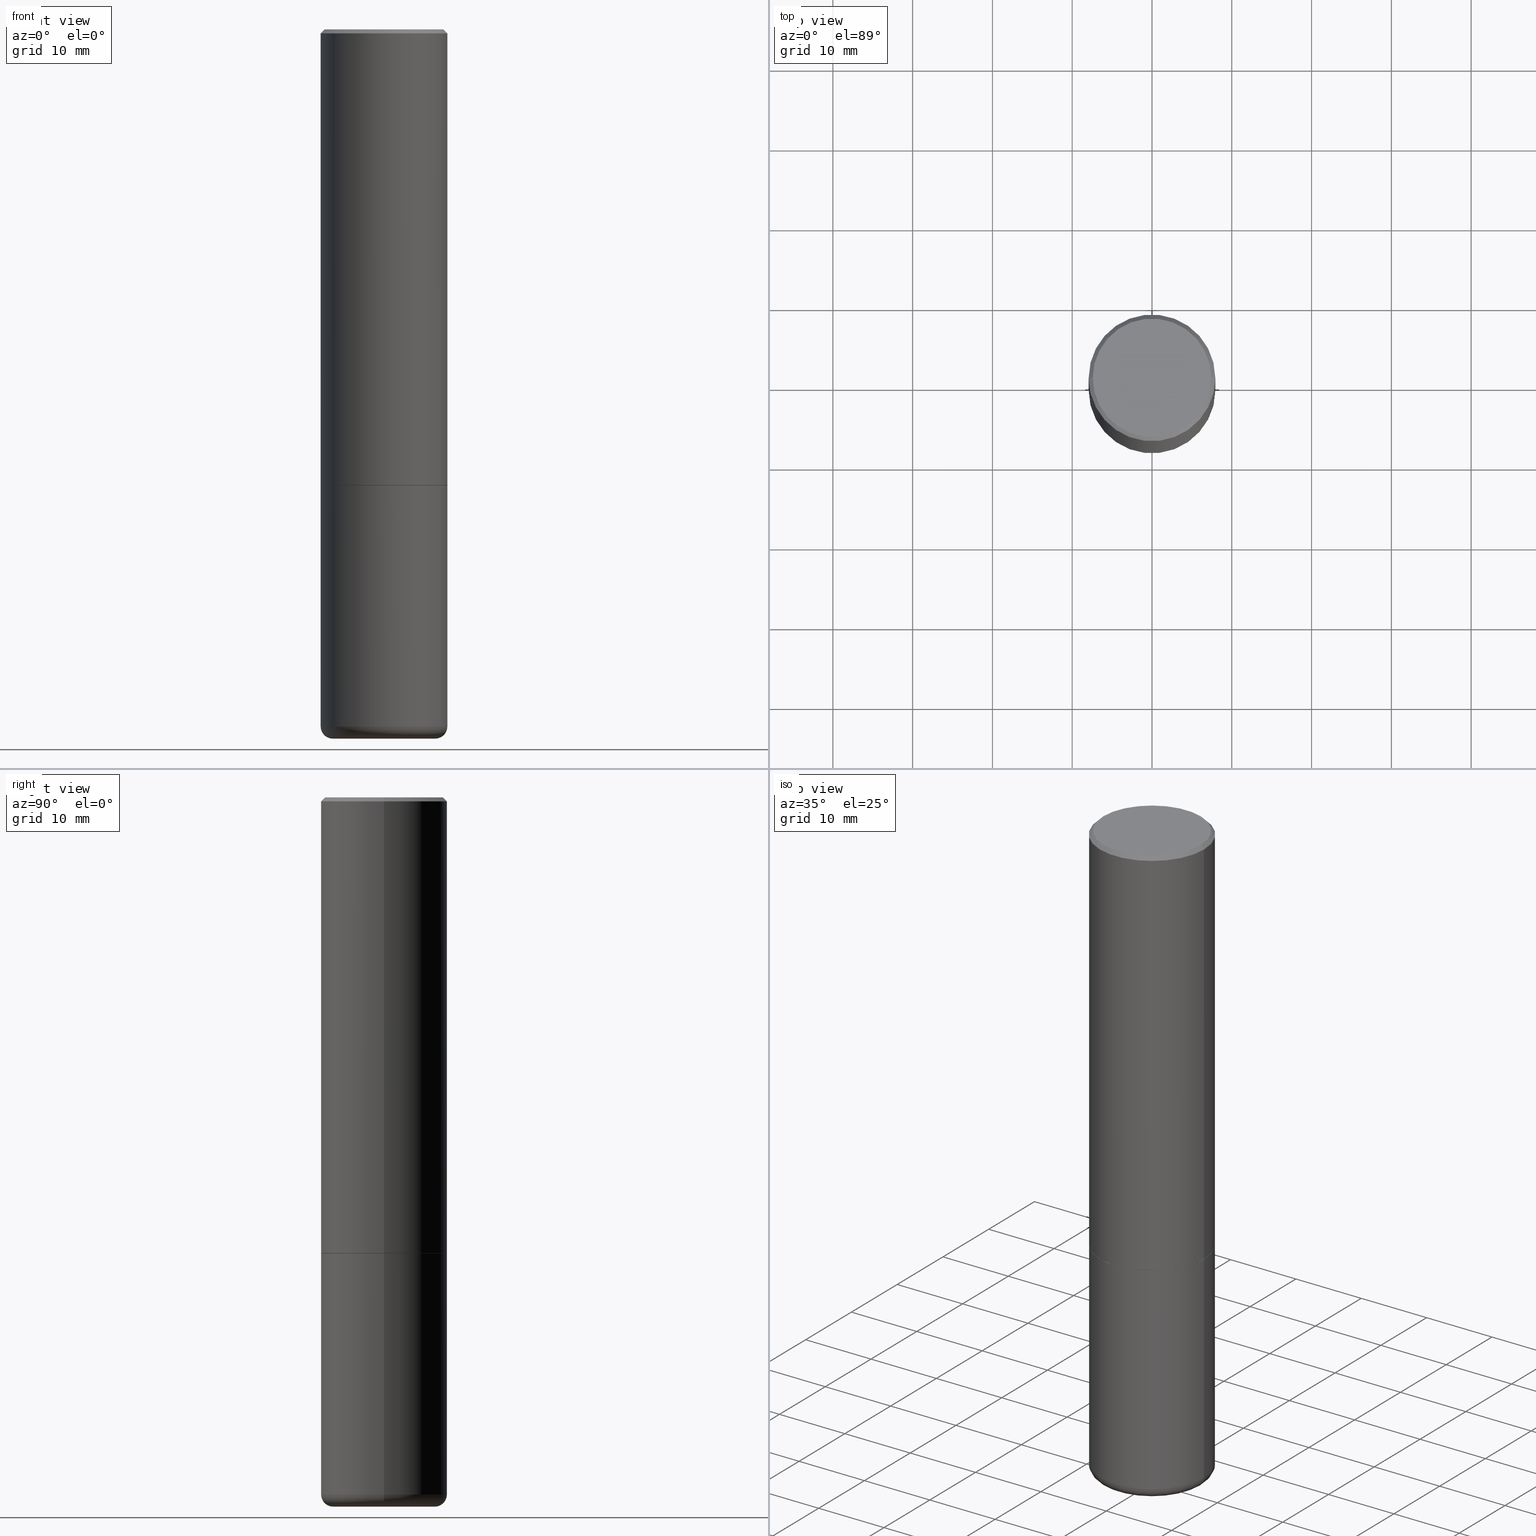
[diagram: canonical four-view strip — front | top / right | iso, engineering-drawing reading convention]
A machine part, canonical four-view strip (front | top / right | iso — engineering-drawing reading convention). The complete STEP part file that produces these views, byte-faithful:
ISO-10303-21;
HEADER;
FILE_DESCRIPTION (( 'STEP AP203' ),
    '1' );
FILE_NAME ('37077.STEP',
    '2024-03-01T19:43:03',
    ( '' ),
    ( '' ),
    'SwSTEP 2.0',
    'SolidWorks 2023',
    '' );
FILE_SCHEMA (( 'CONFIG_CONTROL_DESIGN' ));
ENDSEC;

DATA;
#1 = ORIENTED_EDGE ( 'NONE', *, *, #171, .T. ) ;
#2 = ORIENTED_EDGE ( 'NONE', *, *, #397, .F. ) ;
#3 = CARTESIAN_POINT ( 'NONE',  ( 0.000000000000000000, 0.000000000000000000, 0.000000000000000000 ) ) ;
#4 = ADVANCED_FACE ( 'NONE', ( #13 ), #187, .F. ) ;
#5 = FACE_OUTER_BOUND ( 'NONE', #152, .T. ) ;
#6 = CIRCLE ( 'NONE', #236, 0.3114999999999999991 ) ;
#7 = VERTEX_POINT ( 'NONE', #33 ) ;
#8 = EDGE_CURVE ( 'NONE', #368, #7, #336, .T. ) ;
#9 = AXIS2_PLACEMENT_3D ( 'NONE', #371, #205, #110 ) ;
#10 = CARTESIAN_POINT ( 'NONE',  ( -0.2525000000000000022, -1.010815701726343156E-14, -3.500000000000000000 ) ) ;
#11 = ORIENTED_EDGE ( 'NONE', *, *, #179, .F. ) ;
#12 = CARTESIAN_POINT ( 'NONE',  ( 5.502304813916556222E-29, -7.855833012397076871E-15, -2.249999999999999556 ) ) ;
#13 = FACE_OUTER_BOUND ( 'NONE', #161, .T. ) ;
#14 = CARTESIAN_POINT ( 'NONE',  ( 4.890937612370289799E-31, -6.982962677686315028E-17, -0.02000000000000006981 ) ) ;
#15 = DIRECTION ( 'NONE',  ( -2.438088387897960049E-29, 3.491481338843145188E-15, 1.000000000000000000 ) ) ;
#16 = AXIS2_PLACEMENT_3D ( 'NONE', #83, #50, #77 ) ;
#17 = ORGANIZATION ( 'UNSPECIFIED', 'UNSPECIFIED', '' ) ;
#18 = CARTESIAN_POINT ( 'NONE',  ( 4.890937612370289799E-31, -6.982962677686315028E-17, -0.02000000000000006981 ) ) ;
#19 = CARTESIAN_POINT ( 'NONE',  ( 8.559140821647976968E-29, -1.222018468595100934E-14, -3.500000000000000000 ) ) ;
#20 = VERTEX_POINT ( 'NONE', #154 ) ;
#21 = VECTOR ( 'NONE', #200, 39.37007874015748854 ) ;
#22 = ORIENTED_EDGE ( 'NONE', *, *, #186, .F. ) ;
#23 = PRODUCT_RELATED_PRODUCT_CATEGORY ( 'detail', '', ( #312 ) ) ;
#24 = EDGE_CURVE ( 'NONE', #394, #225, #309, .T. ) ;
#25 = PRODUCT_DEFINITION_SHAPE ( 'NONE', 'NONE',  #170 ) ;
#26 = ORIENTED_EDGE ( 'NONE', *, *, #249, .F. ) ;
#27 = APPLICATION_PROTOCOL_DEFINITION ( 'international standard', 'config_control_design', 1994, #301 ) ;
#28 = VERTEX_POINT ( 'NONE', #207 ) ;
#29 = DIRECTION ( 'NONE',  ( 1.000000000000000000, -6.982962677686269077E-15, 0.000000000000000000 ) ) ;
#30 = CIRCLE ( 'NONE', #108, 0.3125000000000002220 ) ;
#31 = PERSON_AND_ORGANIZATION ( #82, #17 ) ;
#32 = CYLINDRICAL_SURFACE ( 'NONE', #191, 0.3125000000000000000 ) ;
#33 = CARTESIAN_POINT ( 'NONE',  ( 0.3114999999999999991, -1.003102588649634920E-14, -2.249999999999999556 ) ) ;
#34 = CIRCLE ( 'NONE', #126, 0.2525000000000000022 ) ;
#35 = CIRCLE ( 'NONE', #224, 0.3125000000000000000 ) ;
#36 = CALENDAR_DATE ( 2024, 1, 3 ) ;
#37 = DIRECTION ( 'NONE',  ( 1.000000000000000000, -6.982962677686266711E-15, 0.000000000000000000 ) ) ;
#38 = DIRECTION ( 'NONE',  ( 1.000000000000000000, -6.982962677686265922E-15, 0.000000000000000000 ) ) ;
#39 = CYLINDRICAL_SURFACE ( 'NONE', #217, 0.3125000000000000000 ) ;
#40 = AXIS2_PLACEMENT_3D ( 'NONE', #340, #265, #38 ) ;
#41 = PRODUCT_DEFINITION_FORMATION_WITH_SPECIFIED_SOURCE ( 'ANY', '', #312, .NOT_KNOWN. ) ;
#42 = DIRECTION ( 'NONE',  ( -2.445468806185136597E-29, 3.491481338843145583E-15, 1.000000000000000000 ) ) ;
#43 = DIRECTION ( 'NONE',  ( -2.445468806185136597E-29, 3.491481338843145583E-15, 1.000000000000000000 ) ) ;
#44 = DIRECTION ( 'NONE',  ( -2.445468806185136597E-29, 3.491481338843145583E-15, 1.000000000000000000 ) ) ;
#45 = FACE_OUTER_BOUND ( 'NONE', #291, .T. ) ;
#46 = ORIENTED_EDGE ( 'NONE', *, *, #261, .F. ) ;
#47 =( CONVERSION_BASED_UNIT ( 'INCH', #239 ) LENGTH_UNIT ( ) NAMED_UNIT ( #311 ) );
#48 = VECTOR ( 'NONE', #282, 39.37007874015748143 ) ;
#49 = CC_DESIGN_DATE_AND_TIME_ASSIGNMENT ( #229, #366, ( #241 ) ) ;
#50 = DIRECTION ( 'NONE',  ( -2.445468806185136597E-29, 3.491481338843145583E-15, 1.000000000000000000 ) ) ;
#51 = APPLICATION_PROTOCOL_DEFINITION ( 'international standard', 'config_control_design', 1994, #290 ) ;
#52 = ORIENTED_EDGE ( 'NONE', *, *, #8, .F. ) ;
#53 = ORIENTED_EDGE ( 'NONE', *, *, #106, .F. ) ;
#54 = UNCERTAINTY_MEASURE_WITH_UNIT (LENGTH_MEASURE( 1.000000000000000082E-05 ), #47, 'distance_accuracy_value', 'NONE');
#55 = CIRCLE ( 'NONE', #92, 0.2924999999999997047 ) ;
#56 = CIRCLE ( 'NONE', #264, 0.3124999999999998890 ) ;
#57 = ORIENTED_EDGE ( 'NONE', *, *, #221, .T. ) ;
#58 = ORIENTED_EDGE ( 'NONE', *, *, #186, .T. ) ;
#59 = EDGE_CURVE ( 'NONE', #28, #326, #73, .T. ) ;
#60 = CLOSED_SHELL ( 'NONE', ( #206, #143, #4, #375, #89, #302 ) ) ;
#61 = ORIENTED_EDGE ( 'NONE', *, *, #103, .T. ) ;
#62 = CARTESIAN_POINT ( 'NONE',  ( -0.3124999999999998890, 2.112346210000094260E-15, -0.02000000000000006981 ) ) ;
#63 = CARTESIAN_POINT ( 'NONE',  ( -0.2525000000000000022, -1.021657539782616686E-14, -3.439999999999999947 ) ) ;
#64 = APPROVAL_STATUS ( 'not_yet_approved' ) ;
#65 = APPROVAL ( #355, 'UNSPECIFIED' ) ;
#66 = ORIENTED_EDGE ( 'NONE', *, *, #249, .T. ) ;
#67 = AXIS2_PLACEMENT_3D ( 'NONE', #63, #400, #347 ) ;
#68 = CIRCLE ( 'NONE', #94, 0.3125000000000000000 ) ;
#69 = PERSON_AND_ORGANIZATION ( #82, #17 ) ;
#70 = DIRECTION ( 'NONE',  ( -2.445468806185136597E-29, 3.491481338843145583E-15, 1.000000000000000000 ) ) ;
#71 = DIRECTION ( 'NONE',  ( 2.445468806185136597E-29, -3.491481338843145583E-15, -1.000000000000000000 ) ) ;
#72 = ADVANCED_FACE ( 'NONE', ( #204 ), #99, .T. ) ;
#73 = CIRCLE ( 'NONE', #16, 0.3125000000000000000 ) ;
#74 = CC_DESIGN_APPROVAL ( #386, ( #170 ) ) ;
#75 = DIRECTION ( 'NONE',  ( 2.438088387897960049E-29, -3.491481338843145188E-15, -1.000000000000000000 ) ) ;
#76 = CARTESIAN_POINT ( 'NONE',  ( 0.3125000000000000000, -1.003800884917403522E-14, -2.249999999999999556 ) ) ;
#77 = DIRECTION ( 'NONE',  ( 1.000000000000000000, -6.982962677686269077E-15, 0.000000000000000000 ) ) ;
#78 = ORIENTED_EDGE ( 'NONE', *, *, #338, .T. ) ;
#79 = PLANE ( 'NONE',  #139 ) ;
#80 = CC_DESIGN_PERSON_AND_ORGANIZATION_ASSIGNMENT ( #337, #98, ( #241 ) ) ;
#81 = CARTESIAN_POINT ( 'NONE',  ( -0.3125000000000000000, 2.220446049250313081E-15, -1.537167215704658232E-29 ) ) ;
#82 = PERSON ( 'UNSPECIFIED', 'UNSPECIFIED', 'UNSPECIFIED', ('UNSPECIFIED'), ('UNSPECIFIED'), ('UNSPECIFIED') ) ;
#83 = CARTESIAN_POINT ( 'NONE',  ( 5.502304813916556222E-29, -7.855833012397076871E-15, -2.249999999999999556 ) ) ;
#84 = DATE_AND_TIME ( #349, #363 ) ;
#85 = ORIENTED_EDGE ( 'NONE', *, *, #359, .T. ) ;
#86 = CARTESIAN_POINT ( 'NONE',  ( 0.000000000000000000, 0.000000000000000000, 0.000000000000000000 ) ) ;
#87 = DIRECTION ( 'NONE',  ( 1.000000000000000000, 0.000000000000000000, 0.000000000000000000 ) ) ;
#88 = EDGE_LOOP ( 'NONE', ( #53, #66, #58, #293 ) ) ;
#89 = ADVANCED_FACE ( 'NONE', ( #45 ), #252, .T. ) ;
#90 = COORDINATED_UNIVERSAL_TIME_OFFSET ( 5, 0, .BEHIND. ) ;
#91 = ORIENTED_EDGE ( 'NONE', *, *, #401, .T. ) ;
#92 = AXIS2_PLACEMENT_3D ( 'NONE', #280, #278, #406 ) ;
#93 = DIRECTION ( 'NONE',  ( -2.445468806185136597E-29, 3.491481338843145583E-15, 1.000000000000000000 ) ) ;
#94 = AXIS2_PLACEMENT_3D ( 'NONE', #201, #308, #348 ) ;
#95 = ORIENTED_EDGE ( 'NONE', *, *, #334, .T. ) ;
#96 = ORIENTED_EDGE ( 'NONE', *, *, #171, .F. ) ;
#97 = DIRECTION ( 'NONE',  ( -2.445468806185136597E-29, 3.491481338843145583E-15, 1.000000000000000000 ) ) ;
#98 = PERSON_AND_ORGANIZATION_ROLE ( 'classification_officer' ) ;
#99 = CONICAL_SURFACE ( 'NONE', #231, 0.3124999999999998890, 0.7853981633974476129 ) ;
#100 = AXIS2_PLACEMENT_3D ( 'NONE', #270, #44, #177 ) ;
#101 = ORIENTED_EDGE ( 'NONE', *, *, #59, .F. ) ;
#102 = DIRECTION ( 'NONE',  ( -1.000000000000000000, 6.982962677686266711E-15, 0.000000000000000000 ) ) ;
#103 = EDGE_CURVE ( 'NONE', #330, #20, #304, .T. ) ;
#104 = PERSON_AND_ORGANIZATION_ROLE ( 'design_supplier' ) ;
#105 = CARTESIAN_POINT ( 'NONE',  ( 5.502304813916556222E-29, -7.855833012397076871E-15, -2.249999999999999556 ) ) ;
#106 = EDGE_CURVE ( 'NONE', #294, #225, #198, .T. ) ;
#107 = FACE_OUTER_BOUND ( 'NONE', #88, .T. ) ;
#108 = AXIS2_PLACEMENT_3D ( 'NONE', #306, #247, #256 ) ;
#109 = CC_DESIGN_PERSON_AND_ORGANIZATION_ASSIGNMENT ( #352, #160, ( #312 ) ) ;
#110 = DIRECTION ( 'NONE',  ( -1.000000000000000000, 6.982962677686265922E-15, -4.876176775795935793E-29 ) ) ;
#111 = ORIENTED_EDGE ( 'NONE', *, *, #359, .F. ) ;
#112 = CARTESIAN_POINT ( 'NONE',  ( 0.3125000000000000000, -2.182175836776958347E-15, 1.523805242436230075E-29 ) ) ;
#113 = DIRECTION ( 'NONE',  ( -1.000000000000000000, 6.982962677686266711E-15, 0.000000000000000000 ) ) ;
#114 = VECTOR ( 'NONE', #195, 39.37007874015748143 ) ;
#115 = CARTESIAN_POINT ( 'NONE',  ( 5.502304813916556222E-29, -7.855833012397076871E-15, -2.249999999999999556 ) ) ;
#116 = EDGE_CURVE ( 'NONE', #320, #294, #30, .T. ) ;
#117 = LINE ( 'NONE', #81, #367 ) ;
#118 = FACE_OUTER_BOUND ( 'NONE', #353, .T. ) ;
#119 = CIRCLE ( 'NONE', #67, 0.05999999999999994227 ) ;
#120 = ADVANCED_FACE ( 'NONE', ( #5 ), #173, .T. ) ;
#121 = CARTESIAN_POINT ( 'NONE',  ( 0.2525000000000000022, -1.377389388173620432E-14, -3.439999999999999947 ) ) ;
#122 = VERTEX_POINT ( 'NONE', #227 ) ;
#123 = APPROVAL_ROLE ( '' ) ;
#124 = ORIENTED_EDGE ( 'NONE', *, *, #179, .T. ) ;
#125 = ORIENTED_EDGE ( 'NONE', *, *, #390, .F. ) ;
#126 = AXIS2_PLACEMENT_3D ( 'NONE', #19, #178, #147 ) ;
#127 = DIRECTION ( 'NONE',  ( -2.445468806185136597E-29, 3.491481338843145583E-15, 1.000000000000000000 ) ) ;
#128 = ORIENTED_EDGE ( 'NONE', *, *, #106, .T. ) ;
#129 = DATE_AND_TIME ( #322, #373 ) ;
#130 = EDGE_LOOP ( 'NONE', ( #190, #163, #387, #216 ) ) ;
#131 = DIRECTION ( 'NONE',  ( 1.000000000000000000, -6.982962677686265922E-15, 0.000000000000000000 ) ) ;
#132 = ORIENTED_EDGE ( 'NONE', *, *, #192, .T. ) ;
#133 = CARTESIAN_POINT ( 'NONE',  ( 0.3114999999999999991, -1.003102588649634920E-14, -2.249999999999999556 ) ) ;
#134 = CONICAL_SURFACE ( 'NONE', #417, 0.3114999999999999991, 0.7853981633975165577 ) ;
#135 = APPROVAL_DATE_TIME ( #262, #396 ) ;
#136 = COORDINATED_UNIVERSAL_TIME_OFFSET ( 5, 0, .BEHIND. ) ;
#137 = ORIENTED_EDGE ( 'NONE', *, *, #192, .F. ) ;
#138 = VECTOR ( 'NONE', #321, 39.37007874015748143 ) ;
#139 = AXIS2_PLACEMENT_3D ( 'NONE', #409, #75, #402 ) ;
#140 = CARTESIAN_POINT ( 'NONE',  ( -3.862250233040313002E-45, 5.514269730407654285E-31, 1.579349621337152204E-16 ) ) ;
#141 = CYLINDRICAL_SURFACE ( 'NONE', #100, 0.3125000000000000000 ) ;
#142 = CARTESIAN_POINT ( 'NONE',  ( 0.3125000000000002220, -1.003451736783519379E-14, -2.248999999999999666 ) ) ;
#143 = ADVANCED_FACE ( 'NONE', ( #300 ), #403, .T. ) ;
#144 = AXIS2_PLACEMENT_3D ( 'NONE', #105, #277, #408 ) ;
#145 = LOCAL_TIME ( 14, 43, 3.000000000000000000, #136 ) ;
#146 = PLANE ( 'NONE',  #9 ) ;
#147 = DIRECTION ( 'NONE',  ( 1.000000000000000000, -6.982962677686269866E-15, 0.000000000000000000 ) ) ;
#148 = CARTESIAN_POINT ( 'NONE',  ( 4.890937612370289799E-31, -6.982962677686315028E-17, -0.02000000000000006981 ) ) ;
#149 = DATE_AND_TIME ( #209, #254 ) ;
#150 = EDGE_CURVE ( 'NONE', #281, #122, #119, .T. ) ;
#151 = AXIS2_PLACEMENT_3D ( 'NONE', #115, #15, #398 ) ;
#152 = EDGE_LOOP ( 'NONE', ( #185, #132, #255, #411 ) ) ;
#153 = AXIS2_PLACEMENT_3D ( 'NONE', #235, #43, #307 ) ;
#154 = CARTESIAN_POINT ( 'NONE',  ( 0.3125000000000000000, -1.419287164239737937E-14, -3.439999999999999947 ) ) ;
#155 = ORIENTED_EDGE ( 'NONE', *, *, #24, .F. ) ;
#156 = CARTESIAN_POINT ( 'NONE',  ( -0.3114999999999999991, -5.642492390504364798E-15, -2.249999999999999556 ) ) ;
#157 = APPROVAL_ROLE ( '' ) ;
#158 = ORIENTED_EDGE ( 'NONE', *, *, #150, .F. ) ;
#159 = MANIFOLD_SOLID_BREP ( 'Body-Move/Copy2[1]', #60 ) ;
#160 = PERSON_AND_ORGANIZATION_ROLE ( 'design_owner' ) ;
#161 = EDGE_LOOP ( 'NONE', ( #364, #285 ) ) ;
#162 = MANIFOLD_SOLID_BREP ( 'Body-Move/Copy2[2]', #328 ) ;
#163 = ORIENTED_EDGE ( 'NONE', *, *, #390, .T. ) ;
#164 = EDGE_CURVE ( 'NONE', #330, #281, #34, .T. ) ;
#165 = ADVANCED_BREP_SHAPE_REPRESENTATION ( '37077', ( #159, #162, #269 ), #380 ) ;
#166 = AXIS2_PLACEMENT_3D ( 'NONE', #203, #93, #131 ) ;
#167 = APPROVAL_PERSON_ORGANIZATION ( #292, #386, #123 ) ;
#168 = EDGE_LOOP ( 'NONE', ( #361, #415 ) ) ;
#169 = CARTESIAN_POINT ( 'NONE',  ( 4.890937612370289799E-31, -6.982962677686315028E-17, -0.02000000000000006981 ) ) ;
#170 = PRODUCT_DEFINITION ( 'UNKNOWN', '', #41, #202 ) ;
#171 = EDGE_CURVE ( 'NONE', #288, #183, #55, .T. ) ;
#172 = DIRECTION ( 'NONE',  ( 1.000000000000000000, -6.982962677686265133E-15, 4.873475059489881261E-29 ) ) ;
#173 = CONICAL_SURFACE ( 'NONE', #40, 0.3114999999999999991, 0.7853981633975165577 ) ;
#174 = DIRECTION ( 'NONE',  ( 0.7071067811865469066, -7.319954787623252890E-15, -0.7071067811865479058 ) ) ;
#175 = DIRECTION ( 'NONE',  ( -2.445468806185136877E-29, 3.491481338843145188E-15, 1.000000000000000000 ) ) ;
#176 = CARTESIAN_POINT ( 'NONE',  ( 0.2525000000000000022, -1.398338276206679106E-14, -3.500000000000000000 ) ) ;
#177 = DIRECTION ( 'NONE',  ( 1.000000000000000000, -6.982962677686266711E-15, 4.876176775795936353E-29 ) ) ;
#178 = DIRECTION ( 'NONE',  ( -2.445468806185136597E-29, 3.491481338843145583E-15, 1.000000000000000000 ) ) ;
#179 = EDGE_CURVE ( 'NONE', #122, #28, #117, .T. ) ;
#180 = DIRECTION ( 'NONE',  ( -2.445468806185136597E-29, 3.491481338843145583E-15, 1.000000000000000000 ) ) ;
#181 = ADVANCED_FACE ( 'NONE', ( #383 ), #134, .T. ) ;
#182 = APPROVAL_DATE_TIME ( #84, #65 ) ;
#183 = VERTEX_POINT ( 'NONE', #389 ) ;
#184 = LINE ( 'NONE', #416, #48 ) ;
#185 = ORIENTED_EDGE ( 'NONE', *, *, #261, .T. ) ;
#186 = EDGE_CURVE ( 'NONE', #320, #394, #184, .T. ) ;
#187 = PLANE ( 'NONE',  #144 ) ;
#188 = EDGE_LOOP ( 'NONE', ( #125, #96, #95, #78 ) ) ;
#189 = LINE ( 'NONE', #156, #138 ) ;
#190 = ORIENTED_EDGE ( 'NONE', *, *, #286, .F. ) ;
#191 = AXIS2_PLACEMENT_3D ( 'NONE', #3, #331, #297 ) ;
#192 = EDGE_CURVE ( 'NONE', #368, #294, #189, .T. ) ;
#193 = ORIENTED_EDGE ( 'NONE', *, *, #150, .T. ) ;
#194 = DIRECTION ( 'NONE',  ( -2.445468806185136597E-29, 3.491481338843145583E-15, 1.000000000000000000 ) ) ;
#195 = DIRECTION ( 'NONE',  ( -2.445468806185136877E-29, 3.491481338843145188E-15, 1.000000000000000000 ) ) ;
#196 = DIRECTION ( 'NONE',  ( 1.000000000000000000, -6.982962677686266711E-15, 4.876176775795936353E-29 ) ) ;
#197 = AXIS2_PLACEMENT_3D ( 'NONE', #169, #263, #102 ) ;
#198 = LINE ( 'NONE', #343, #362 ) ;
#199 = EDGE_CURVE ( 'NONE', #281, #330, #372, .T. ) ;
#200 = DIRECTION ( 'NONE',  ( -0.7071067811865469066, 2.468850131082251144E-15, -0.7071067811865479058 ) ) ;
#201 = CARTESIAN_POINT ( 'NONE',  ( 8.412412693276869938E-29, -1.201069580562042103E-14, -3.439999999999999947 ) ) ;
#202 = DESIGN_CONTEXT ( 'detailed design', #290, 'design' ) ;
#203 = CARTESIAN_POINT ( 'NONE',  ( 5.502304813916556222E-29, -7.855833012397076871E-15, -2.249999999999999556 ) ) ;
#204 = FACE_OUTER_BOUND ( 'NONE', #188, .T. ) ;
#205 = DIRECTION ( 'NONE',  ( 2.438088387897960049E-29, -3.491481338843145188E-15, -1.000000000000000000 ) ) ;
#206 = ADVANCED_FACE ( 'NONE', ( #251 ), #244, .T. ) ;
#207 = CARTESIAN_POINT ( 'NONE',  ( -0.3125000000000000000, -7.712818359758435078E-15, -2.249999999999999556 ) ) ;
#208 = VECTOR ( 'NONE', #232, 39.37007874015748143 ) ;
#209 = CALENDAR_DATE ( 2024, 1, 3 ) ;
#210 = ORIENTED_EDGE ( 'NONE', *, *, #116, .T. ) ;
#211 = DIRECTION ( 'NONE',  ( -2.445468806185136597E-29, 3.491481338843145583E-15, 1.000000000000000000 ) ) ;
#212 = DIRECTION ( 'NONE',  ( 1.000000000000000000, -6.982962677686265922E-15, 0.000000000000000000 ) ) ;
#213 = AXIS2_PLACEMENT_3D ( 'NONE', #374, #180, #407 ) ;
#214 = AXIS2_PLACEMENT_3D ( 'NONE', #289, #127, #412 ) ;
#215 = EDGE_CURVE ( 'NONE', #326, #28, #35, .T. ) ;
#216 = ORIENTED_EDGE ( 'NONE', *, *, #334, .F. ) ;
#217 = AXIS2_PLACEMENT_3D ( 'NONE', #303, #70, #196 ) ;
#218 = DIRECTION ( 'NONE',  ( -2.445468806185136877E-29, 3.491481338843145188E-15, 1.000000000000000000 ) ) ;
#219 = EDGE_LOOP ( 'NONE', ( #323, #193, #2, #357 ) ) ;
#220 = ORIENTED_EDGE ( 'NONE', *, *, #8, .T. ) ;
#221 = EDGE_CURVE ( 'NONE', #7, #320, #316, .T. ) ;
#222 = ORIENTED_EDGE ( 'NONE', *, *, #401, .F. ) ;
#223 = PERSON_AND_ORGANIZATION ( #82, #17 ) ;
#224 = AXIS2_PLACEMENT_3D ( 'NONE', #327, #97, #29 ) ;
#225 = VERTEX_POINT ( 'NONE', #62 ) ;
#226 = FACE_OUTER_BOUND ( 'NONE', #356, .T. ) ;
#227 = CARTESIAN_POINT ( 'NONE',  ( -0.3125000000000000000, -9.790249756370107944E-15, -3.439999999999999947 ) ) ;
#228 = PERSON_AND_ORGANIZATION_ROLE ( 'creator' ) ;
#229 = DATE_AND_TIME ( #36, #145 ) ;
#230 = CC_DESIGN_PERSON_AND_ORGANIZATION_ASSIGNMENT ( #69, #228, ( #41 ) ) ;
#231 = AXIS2_PLACEMENT_3D ( 'NONE', #148, #71, #113 ) ;
#232 = DIRECTION ( 'NONE',  ( 0.7071067811865957564, -2.468850131082761932E-15, 0.7071067811864992780 ) ) ;
#233 = FACE_OUTER_BOUND ( 'NONE', #168, .T. ) ;
#234 = ADVANCED_FACE ( 'NONE', ( #107 ), #32, .T. ) ;
#235 = CARTESIAN_POINT ( 'NONE',  ( 8.412412693276869938E-29, -1.201069580562042103E-14, -3.439999999999999947 ) ) ;
#236 = AXIS2_PLACEMENT_3D ( 'NONE', #12, #341, #377 ) ;
#237 = CIRCLE ( 'NONE', #153, 0.3125000000000000000 ) ;
#238 = CARTESIAN_POINT ( 'NONE',  ( -0.3125000000000002220, -1.740639529667230767E-15, -2.248999999999999666 ) ) ;
#239 = LENGTH_MEASURE_WITH_UNIT ( LENGTH_MEASURE( 0.02539999999999999897 ), #405 );
#240 = CARTESIAN_POINT ( 'NONE',  ( -0.3124999999999998890, 2.112346210000094260E-15, -0.02000000000000006981 ) ) ;
#241 = SECURITY_CLASSIFICATION ( '', '', #332 ) ;
#242 = PERSON_AND_ORGANIZATION_ROLE ( 'creator' ) ;
#243 = ORIENTED_EDGE ( 'NONE', *, *, #199, .T. ) ;
#244 = CYLINDRICAL_SURFACE ( 'NONE', #395, 0.3125000000000000000 ) ;
#245 = DIRECTION ( 'NONE',  ( 1.000000000000000000, -6.982962677686274599E-15, 0.000000000000000000 ) ) ;
#246 = COORDINATED_UNIVERSAL_TIME_OFFSET ( 5, 0, .BEHIND. ) ;
#247 = DIRECTION ( 'NONE',  ( -2.445468806185136597E-29, 3.491481338843145583E-15, 1.000000000000000000 ) ) ;
#248 = CC_DESIGN_DATE_AND_TIME_ASSIGNMENT ( #129, #381, ( #170 ) ) ;
#249 = EDGE_CURVE ( 'NONE', #294, #320, #379, .T. ) ;
#250 = ORIENTED_EDGE ( 'NONE', *, *, #286, .T. ) ;
#251 = FACE_OUTER_BOUND ( 'NONE', #392, .T. ) ;
#252 = TOROIDAL_SURFACE ( 'NONE', #213, 0.2525000000000000022, 0.05999999999999995615 ) ;
#253 = ADVANCED_FACE ( 'NONE', ( #369 ), #391, .T. ) ;
#254 = LOCAL_TIME ( 14, 43, 3.000000000000000000, #90 ) ;
#255 = ORIENTED_EDGE ( 'NONE', *, *, #116, .F. ) ;
#256 = DIRECTION ( 'NONE',  ( 1.000000000000000000, -6.982962677686266711E-15, 0.000000000000000000 ) ) ;
#257 = PERSON_AND_ORGANIZATION ( #82, #17 ) ;
#258 = EDGE_LOOP ( 'NONE', ( #137, #220, #57, #26 ) ) ;
#259 = DIRECTION ( 'NONE',  ( -2.445468806185136597E-29, 3.491481338843145583E-15, 1.000000000000000000 ) ) ;
#260 = ADVANCED_FACE ( 'NONE', ( #226 ), #365, .F. ) ;
#261 = EDGE_CURVE ( 'NONE', #7, #368, #6, .T. ) ;
#262 = DATE_AND_TIME ( #360, #318 ) ;
#263 = DIRECTION ( 'NONE',  ( 2.445468806185136597E-29, -3.491481338843145583E-15, -1.000000000000000000 ) ) ;
#264 = AXIS2_PLACEMENT_3D ( 'NONE', #18, #346, #378 ) ;
#265 = DIRECTION ( 'NONE',  ( -2.445468806185136597E-29, 3.491481338843145583E-15, 1.000000000000000000 ) ) ;
#266 = SHAPE_DEFINITION_REPRESENTATION ( #25, #165 ) ;
#267 = DIRECTION ( 'NONE',  ( -2.445468806185136597E-29, 3.491481338843145583E-15, 1.000000000000000000 ) ) ;
#268 = APPROVAL_ROLE ( '' ) ;
#269 = AXIS2_PLACEMENT_3D ( 'NONE', #325, #410, #87 ) ;
#270 = CARTESIAN_POINT ( 'NONE',  ( 0.000000000000000000, 0.000000000000000000, 0.000000000000000000 ) ) ;
#271 = CARTESIAN_POINT ( 'NONE',  ( 0.3124999999999998890, -2.213735251080466123E-15, -0.02000000000000006981 ) ) ;
#272 = DIRECTION ( 'NONE',  ( 1.000000000000000000, -6.982962677686264344E-15, 4.883557194083112340E-29 ) ) ;
#273 = CARTESIAN_POINT ( 'NONE',  ( -0.2924999999999997047, 2.077431396611662611E-15, 1.579349621337007990E-16 ) ) ;
#274 = VECTOR ( 'NONE', #174, 39.37007874015748854 ) ;
#275 = DIRECTION ( 'NONE',  ( -2.445468806185136597E-29, 3.491481338843145583E-15, 1.000000000000000000 ) ) ;
#276 = CC_DESIGN_SECURITY_CLASSIFICATION ( #241, ( #41 ) ) ;
#277 = DIRECTION ( 'NONE',  ( 2.438088387897960049E-29, -3.491481338843145188E-15, -1.000000000000000000 ) ) ;
#278 = DIRECTION ( 'NONE',  ( -2.445468806185136597E-29, 3.491481338843145583E-15, 1.000000000000000000 ) ) ;
#279 = DIRECTION ( 'NONE',  ( -6.982962677686266711E-15, -1.000000000000000000, 3.491481338843145583E-15 ) ) ;
#280 = CARTESIAN_POINT ( 'NONE',  ( -3.862250233040313002E-45, 5.514269730407654285E-31, 1.579349621337152204E-16 ) ) ;
#281 = VERTEX_POINT ( 'NONE', #10 ) ;
#282 = DIRECTION ( 'NONE',  ( -2.445468806185136877E-29, 3.491481338843145188E-15, 1.000000000000000000 ) ) ;
#283 = AXIS2_PLACEMENT_3D ( 'NONE', #295, #267, #37 ) ;
#284 = APPROVAL_PERSON_ORGANIZATION ( #223, #396, #268 ) ;
#285 = ORIENTED_EDGE ( 'NONE', *, *, #59, .T. ) ;
#286 = EDGE_CURVE ( 'NONE', #183, #288, #296, .T. ) ;
#287 = MECHANICAL_CONTEXT ( 'NONE', #301, 'mechanical' ) ;
#288 = VERTEX_POINT ( 'NONE', #273 ) ;
#289 = CARTESIAN_POINT ( 'NONE',  ( 8.559140821647976968E-29, -1.222018468595100934E-14, -3.500000000000000000 ) ) ;
#290 = APPLICATION_CONTEXT ( 'configuration controlled 3d designs of mechanical parts and assemblies' ) ;
#291 = EDGE_LOOP ( 'NONE', ( #158, #243, #61, #222 ) ) ;
#292 = PERSON_AND_ORGANIZATION ( #82, #17 ) ;
#293 = ORIENTED_EDGE ( 'NONE', *, *, #338, .F. ) ;
#294 = VERTEX_POINT ( 'NONE', #238 ) ;
#295 = CARTESIAN_POINT ( 'NONE',  ( 5.499859345110371740E-29, -7.852341531058233864E-15, -2.248999999999999666 ) ) ;
#296 = CIRCLE ( 'NONE', #354, 0.2924999999999997047 ) ;
#297 = DIRECTION ( 'NONE',  ( 1.000000000000000000, -6.982962677686266711E-15, 4.876176775795936353E-29 ) ) ;
#298 = CC_DESIGN_APPROVAL ( #65, ( #41 ) ) ;
#299 = ADVANCED_FACE ( 'NONE', ( #376 ), #79, .F. ) ;
#300 = FACE_OUTER_BOUND ( 'NONE', #219, .T. ) ;
#301 = APPLICATION_CONTEXT ( 'configuration controlled 3d designs of mechanical parts and assemblies' ) ;
#302 = ADVANCED_FACE ( 'NONE', ( #233 ), #146, .T. ) ;
#303 = CARTESIAN_POINT ( 'NONE',  ( 0.000000000000000000, 0.000000000000000000, 0.000000000000000000 ) ) ;
#304 = CIRCLE ( 'NONE', #317, 0.05999999999999994227 ) ;
#305 = LINE ( 'NONE', #112, #114 ) ;
#306 = CARTESIAN_POINT ( 'NONE',  ( 5.499859345110371740E-29, -7.852341531058233864E-15, -2.248999999999999666 ) ) ;
#307 = DIRECTION ( 'NONE',  ( 1.000000000000000000, -6.982962677686269077E-15, 0.000000000000000000 ) ) ;
#308 = DIRECTION ( 'NONE',  ( -2.445468806185136597E-29, 3.491481338843145583E-15, 1.000000000000000000 ) ) ;
#309 = CIRCLE ( 'NONE', #385, 0.3124999999999998890 ) ;
#310 = LINE ( 'NONE', #344, #274 ) ;
#311 = DIMENSIONAL_EXPONENTS ( 1.000000000000000000, 0.000000000000000000, 0.000000000000000000, 0.000000000000000000, 0.000000000000000000, 0.000000000000000000, 0.000000000000000000 ) ;
#312 = PRODUCT ( '37077', '37077', '', ( #287 ) ) ;
#313 = PERSON_AND_ORGANIZATION ( #82, #17 ) ;
#314 =( NAMED_UNIT ( * ) SI_UNIT ( $, .STERADIAN. ) SOLID_ANGLE_UNIT ( ) );
#315 = ADVANCED_FACE ( 'NONE', ( #118 ), #141, .T. ) ;
#316 = LINE ( 'NONE', #133, #208 ) ;
#317 = AXIS2_PLACEMENT_3D ( 'NONE', #121, #279, #245 ) ;
#318 = LOCAL_TIME ( 14, 43, 3.000000000000000000, #335 ) ;
#319 =( NAMED_UNIT ( * ) PLANE_ANGLE_UNIT ( ) SI_UNIT ( $, .RADIAN. ) );
#320 = VERTEX_POINT ( 'NONE', #142 ) ;
#321 = DIRECTION ( 'NONE',  ( -0.7071067811865957564, 7.493145998870527710E-15, 0.7071067811864992780 ) ) ;
#322 = CALENDAR_DATE ( 2024, 1, 3 ) ;
#323 = ORIENTED_EDGE ( 'NONE', *, *, #164, .T. ) ;
#324 = DIRECTION ( 'NONE',  ( 1.000000000000000000, -6.982962677686266711E-15, 4.876176775795936353E-29 ) ) ;
#325 = CARTESIAN_POINT ( 'NONE',  ( 0.000000000000000000, 0.000000000000000000, 0.000000000000000000 ) ) ;
#326 = VERTEX_POINT ( 'NONE', #76 ) ;
#327 = CARTESIAN_POINT ( 'NONE',  ( 5.502304813916556222E-29, -7.855833012397076871E-15, -2.249999999999999556 ) ) ;
#328 = CLOSED_SHELL ( 'NONE', ( #120, #315, #253, #72, #234, #181, #260, #299 ) ) ;
#329 = APPROVAL_PERSON_ORGANIZATION ( #257, #65, #157 ) ;
#330 = VERTEX_POINT ( 'NONE', #176 ) ;
#331 = DIRECTION ( 'NONE',  ( -2.445468806185136597E-29, 3.491481338843145583E-15, 1.000000000000000000 ) ) ;
#332 = SECURITY_CLASSIFICATION_LEVEL ( 'unclassified' ) ;
#333 = CC_DESIGN_PERSON_AND_ORGANIZATION_ASSIGNMENT ( #313, #242, ( #170 ) ) ;
#334 = EDGE_CURVE ( 'NONE', #288, #225, #399, .T. ) ;
#335 = COORDINATED_UNIVERSAL_TIME_OFFSET ( 5, 0, .BEHIND. ) ;
#336 = CIRCLE ( 'NONE', #166, 0.3114999999999999991 ) ;
#337 = PERSON_AND_ORGANIZATION ( #82, #17 ) ;
#338 = EDGE_CURVE ( 'NONE', #225, #394, #56, .T. ) ;
#339 = FACE_OUTER_BOUND ( 'NONE', #382, .T. ) ;
#340 = CARTESIAN_POINT ( 'NONE',  ( 5.502304813916556222E-29, -7.855833012397076871E-15, -2.249999999999999556 ) ) ;
#341 = DIRECTION ( 'NONE',  ( -2.445468806185136597E-29, 3.491481338843145583E-15, 1.000000000000000000 ) ) ;
#342 = AXIS2_PLACEMENT_3D ( 'NONE', #393, #194, #272 ) ;
#343 = CARTESIAN_POINT ( 'NONE',  ( -0.3125000000000000000, 2.220446049250313081E-15, -1.537167215704658232E-29 ) ) ;
#344 = CARTESIAN_POINT ( 'NONE',  ( 0.3124999999999998890, -2.213735251080466123E-15, -0.02000000000000006981 ) ) ;
#345 = DIRECTION ( 'NONE',  ( 1.000000000000000000, -6.982962677686266711E-15, 0.000000000000000000 ) ) ;
#346 = DIRECTION ( 'NONE',  ( -2.445468806185136597E-29, 3.491481338843145583E-15, 1.000000000000000000 ) ) ;
#347 = DIRECTION ( 'NONE',  ( -1.000000000000000000, 7.105427357600997914E-15, 0.000000000000000000 ) ) ;
#348 = DIRECTION ( 'NONE',  ( 1.000000000000000000, -6.982962677686269077E-15, 0.000000000000000000 ) ) ;
#349 = CALENDAR_DATE ( 2024, 1, 3 ) ;
#350 = APPROVAL_STATUS ( 'not_yet_approved' ) ;
#351 = ORIENTED_EDGE ( 'NONE', *, *, #215, .F. ) ;
#352 = PERSON_AND_ORGANIZATION ( #82, #17 ) ;
#353 = EDGE_LOOP ( 'NONE', ( #210, #128, #155, #22 ) ) ;
#354 = AXIS2_PLACEMENT_3D ( 'NONE', #140, #42, #172 ) ;
#355 = APPROVAL_STATUS ( 'not_yet_approved' ) ;
#356 = EDGE_LOOP ( 'NONE', ( #46, #52 ) ) ;
#357 = ORIENTED_EDGE ( 'NONE', *, *, #103, .F. ) ;
#358 = CARTESIAN_POINT ( 'NONE',  ( 5.502304813916556222E-29, -7.855833012397076871E-15, -2.249999999999999556 ) ) ;
#359 = EDGE_CURVE ( 'NONE', #20, #326, #305, .T. ) ;
#360 = CALENDAR_DATE ( 2024, 1, 3 ) ;
#361 = ORIENTED_EDGE ( 'NONE', *, *, #164, .F. ) ;
#362 = VECTOR ( 'NONE', #175, 39.37007874015748143 ) ;
#363 = LOCAL_TIME ( 14, 43, 3.000000000000000000, #246 ) ;
#364 = ORIENTED_EDGE ( 'NONE', *, *, #215, .T. ) ;
#365 = PLANE ( 'NONE',  #151 ) ;
#366 = DATE_TIME_ROLE ( 'classification_date' ) ;
#367 = VECTOR ( 'NONE', #218, 39.37007874015748143 ) ;
#368 = VERTEX_POINT ( 'NONE', #370 ) ;
#369 = FACE_OUTER_BOUND ( 'NONE', #130, .T. ) ;
#370 = CARTESIAN_POINT ( 'NONE',  ( -0.3114999999999999991, -5.637193936156142396E-15, -2.249999999999999556 ) ) ;
#371 = CARTESIAN_POINT ( 'NONE',  ( 8.559140821647976968E-29, -1.222018468595100934E-14, -3.500000000000000000 ) ) ;
#372 = CIRCLE ( 'NONE', #214, 0.2525000000000000022 ) ;
#373 = LOCAL_TIME ( 14, 43, 3.000000000000000000, #418 ) ;
#374 = CARTESIAN_POINT ( 'NONE',  ( 8.412412693276869938E-29, -1.201069580562042103E-14, -3.439999999999999947 ) ) ;
#375 = ADVANCED_FACE ( 'NONE', ( #339 ), #39, .T. ) ;
#376 = FACE_OUTER_BOUND ( 'NONE', #384, .T. ) ;
#377 = DIRECTION ( 'NONE',  ( 1.000000000000000000, -6.982962677686265922E-15, 0.000000000000000000 ) ) ;
#378 = DIRECTION ( 'NONE',  ( 1.000000000000000000, -6.982962677686266711E-15, 0.000000000000000000 ) ) ;
#379 = CIRCLE ( 'NONE', #283, 0.3125000000000002220 ) ;
#380 =( GEOMETRIC_REPRESENTATION_CONTEXT ( 3 ) GLOBAL_UNCERTAINTY_ASSIGNED_CONTEXT ( ( #54 ) ) GLOBAL_UNIT_ASSIGNED_CONTEXT ( ( #47, #319, #314 ) ) REPRESENTATION_CONTEXT ( 'NONE', 'WORKASPACE' ) );
#381 = DATE_TIME_ROLE ( 'creation_date' ) ;
#382 = EDGE_LOOP ( 'NONE', ( #11, #91, #85, #101 ) ) ;
#383 = FACE_OUTER_BOUND ( 'NONE', #258, .T. ) ;
#384 = EDGE_LOOP ( 'NONE', ( #1, #250 ) ) ;
#385 = AXIS2_PLACEMENT_3D ( 'NONE', #14, #275, #345 ) ;
#386 = APPROVAL ( #350, 'UNSPECIFIED' ) ;
#387 = ORIENTED_EDGE ( 'NONE', *, *, #24, .T. ) ;
#388 = ORIENTED_EDGE ( 'NONE', *, *, #397, .T. ) ;
#389 = CARTESIAN_POINT ( 'NONE',  ( 0.2924999999999997047, -2.110215457714317959E-15, 1.579349621337297404E-16 ) ) ;
#390 = EDGE_CURVE ( 'NONE', #183, #394, #310, .T. ) ;
#391 = CONICAL_SURFACE ( 'NONE', #197, 0.3124999999999998890, 0.7853981633974476129 ) ;
#392 = EDGE_LOOP ( 'NONE', ( #388, #124, #351, #111 ) ) ;
#393 = CARTESIAN_POINT ( 'NONE',  ( 8.412412693276869938E-29, -1.201069580562042103E-14, -3.439999999999999947 ) ) ;
#394 = VERTEX_POINT ( 'NONE', #271 ) ;
#395 = AXIS2_PLACEMENT_3D ( 'NONE', #86, #211, #324 ) ;
#396 = APPROVAL ( #64, 'UNSPECIFIED' ) ;
#397 = EDGE_CURVE ( 'NONE', #20, #122, #237, .T. ) ;
#398 = DIRECTION ( 'NONE',  ( 1.000000000000000000, -6.982962677686265922E-15, 4.876176775795935793E-29 ) ) ;
#399 = LINE ( 'NONE', #240, #21 ) ;
#400 = DIRECTION ( 'NONE',  ( 7.105427357601001859E-15, 1.000000000000000000, -3.491481338843145583E-15 ) ) ;
#401 = EDGE_CURVE ( 'NONE', #122, #20, #68, .T. ) ;
#402 = DIRECTION ( 'NONE',  ( -1.000000000000000000, 6.982962677686265922E-15, -4.876176775795935793E-29 ) ) ;
#403 = TOROIDAL_SURFACE ( 'NONE', #342, 0.2525000000000000022, 0.05999999999999995615 ) ;
#404 = CC_DESIGN_APPROVAL ( #396, ( #241 ) ) ;
#405 =( LENGTH_UNIT ( ) NAMED_UNIT ( * ) SI_UNIT ( $, .METRE. ) );
#406 = DIRECTION ( 'NONE',  ( 1.000000000000000000, -6.982962677686265133E-15, 4.873475059489881261E-29 ) ) ;
#407 = DIRECTION ( 'NONE',  ( 1.000000000000000000, -6.982962677686264344E-15, 4.883557194083112340E-29 ) ) ;
#408 = DIRECTION ( 'NONE',  ( -1.000000000000000000, 6.982962677686265922E-15, -4.876176775795935793E-29 ) ) ;
#409 = CARTESIAN_POINT ( 'NONE',  ( 2.042516583223230567E-15, 0.2924999999999997047, -9.422908105447613343E-16 ) ) ;
#410 = DIRECTION ( 'NONE',  ( 0.000000000000000000, 0.000000000000000000, 1.000000000000000000 ) ) ;
#411 = ORIENTED_EDGE ( 'NONE', *, *, #221, .F. ) ;
#412 = DIRECTION ( 'NONE',  ( 1.000000000000000000, -6.982962677686269866E-15, 0.000000000000000000 ) ) ;
#413 = CC_DESIGN_PERSON_AND_ORGANIZATION_ASSIGNMENT ( #31, #104, ( #41 ) ) ;
#414 = APPROVAL_DATE_TIME ( #149, #386 ) ;
#415 = ORIENTED_EDGE ( 'NONE', *, *, #199, .F. ) ;
#416 = CARTESIAN_POINT ( 'NONE',  ( 0.3125000000000000000, -2.182175836776958347E-15, 1.523805242436230075E-29 ) ) ;
#417 = AXIS2_PLACEMENT_3D ( 'NONE', #358, #259, #212 ) ;
#418 = COORDINATED_UNIVERSAL_TIME_OFFSET ( 5, 0, .BEHIND. ) ;
ENDSEC;
END-ISO-10303-21;
